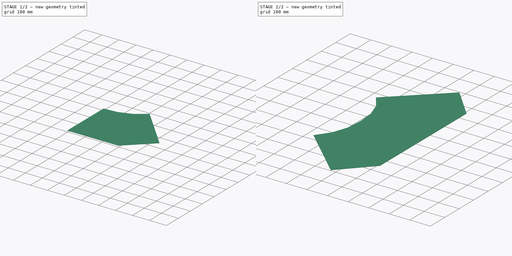
[diagram: build sequence overview — one tinted view per stage of 2, left to right]
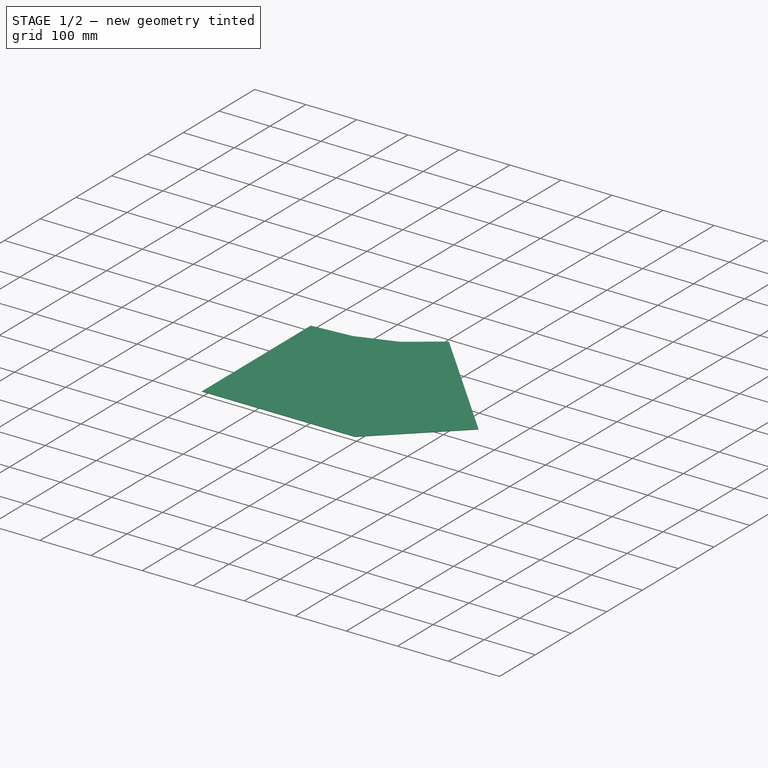
[diagram: stage 1 of 2 — iso view after this stage's code; geometry added in this stage tinted green]
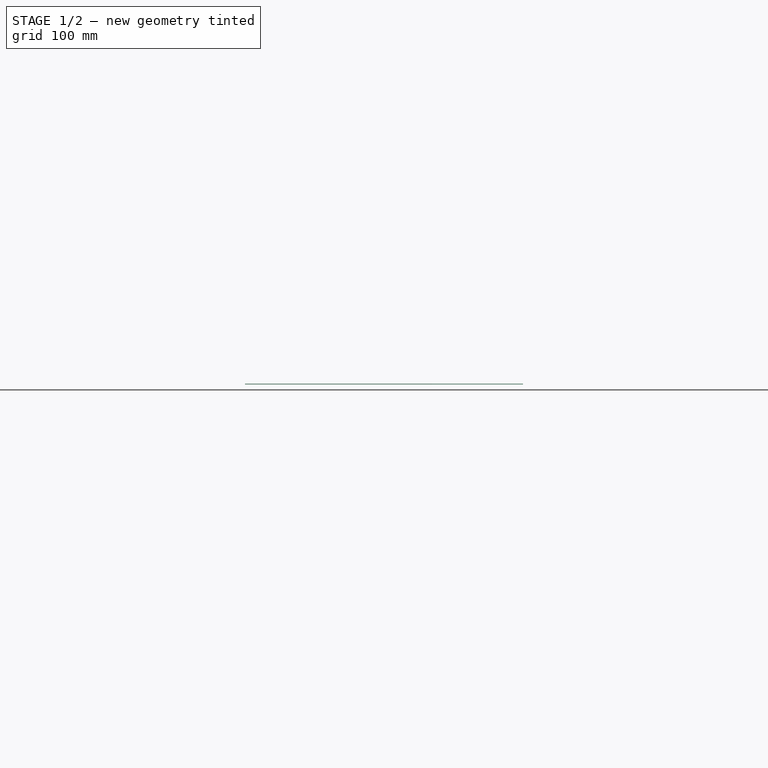
[diagram: stage 1 of 2 — front view after this stage's code; geometry added in this stage tinted green]
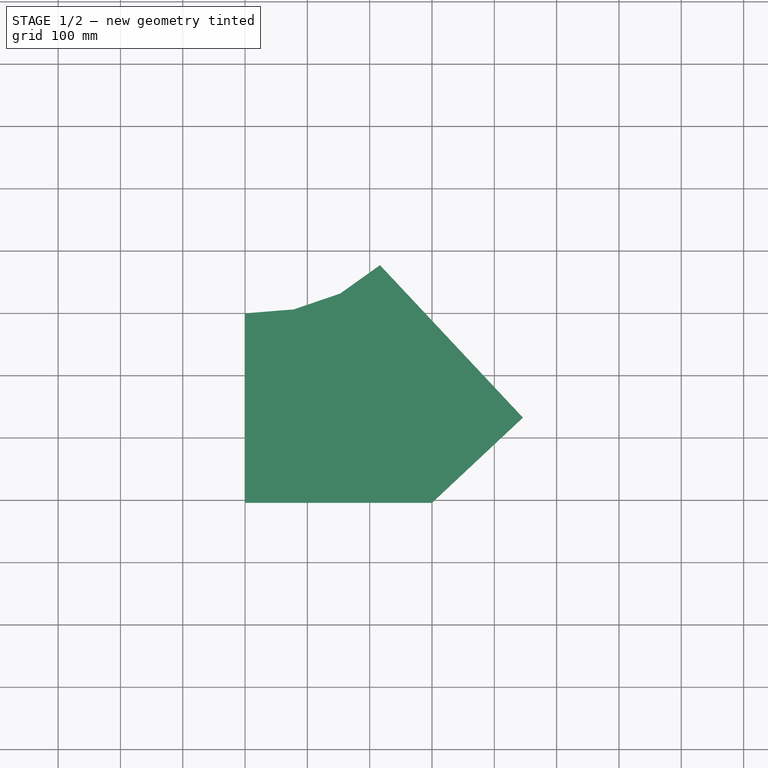
[diagram: stage 1 of 2 — top view after this stage's code; geometry added in this stage tinted green]
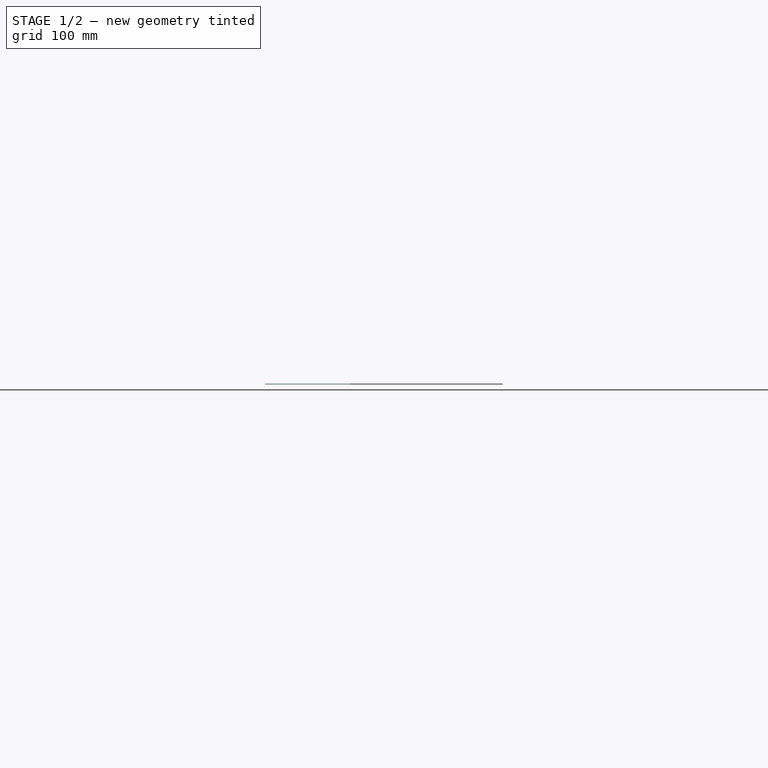
[diagram: stage 1 of 2 — right view after this stage's code; geometry added in this stage tinted green]
FCSTD DOCUMENT  (FreeCAD 0.19R17646 (Git))
Label: PLANIFICAÇÃO
License: All rights reserved
LicenseURL: http://en.wikipedia.org/wiki/All_rights_reserved
objects: Part::Feature×29, App::MeasureDistance×5, PartDesign::Body×3, Part::Plane×2, PartDesign::FeatureBase×2, Part::Circle×1, Part::RegularPolygon×1, Sketcher::SketchObject×1, PartDesign::Pad×1, Part::Compound×1, Part::Loft×1
note: 43 computed .brp shape members not serialized (recipe doc carries the construction recipe); baked Part::Feature solids carry a one-line shape summary decoded from their .brp

FEATURE [Part::Plane] Plane
  AttacherType = Attacher::AttachEngine3D
  Length = 300
  Placement = pos=(-300,-200,0) rot=(0,0,1;0rad)
  Width = 200
FEATURE [Part::Plane] Plane001
  AttacherType = Attacher::AttachEngine3D
  Length = 600
  Placement = pos=(-300,-200,0) rot=(0,0,1;0rad)
  Width = 400
FEATURE [Part::Circle] Circle
  Angle0 = 0
  Angle1 = 360
  AttacherType = Attacher::AttachEngine3D
  Placement = pos=(0,0,300) rot=(0,0,1;0rad)
  Radius = 150
FEATURE [Part::RegularPolygon] RegularPolygon  label="Regular polygon"
  AttacherType = Attacher::AttachEngine3D
  Circumradius = 150
  Placement = pos=(0,0,300) rot=(0,0,1;0rad)
  Polygon = 12
FEATURE [Part::Feature] Edge
  shape: bbox 2e-07 x 50 x 300 mm, 0 faces, 0 solids (baked)
FEATURE [Part::Feature] Edge001
  shape: bbox 300 x 50 x 300 mm, 0 faces, 0 solids (baked)
FEATURE [Part::Feature] Edge002
  shape: bbox 225 x 70.1 x 300 mm, 0 faces, 0 solids (baked)
FEATURE [Part::Feature] Edge003
  shape: bbox 170.1 x 125 x 300 mm, 0 faces, 0 solids (baked)
FEATURE [Part::Feature] Edge004
  shape: bbox 150 x 200 x 300 mm, 0 faces, 0 solids (baked)
FEATURE [Part::Feature] Edge005
  shape: bbox 150 x 2e-07 x 300 mm, 0 faces, 0 solids (baked)
FEATURE [App::MeasureDistance] Distance  label="Distance: 427,20 mm"
  Distance = 427.2
  P1 = (-1.563e-13,-150,300)
  P2 = (-300,-200,0)
FEATURE [App::MeasureDistance] Distance001  label="Distance: 381,50 mm"
  Distance = 381.495
  P1 = (-75,-129.904,300)
  P2 = (-300,-200,0)
FEATURE [App::MeasureDistance] Distance002  label="Distance: 366,82 mm"
  Distance = 366.821
  P1 = (-129.904,-75,300)
  P2 = (-300,-200,0)
FEATURE [App::MeasureDistance] Distance003  label="Distance: 390,51 mm"
  Distance = 390.512
  P1 = (-150,1.137e-13,300)
  P2 = (-300,-200,0)
FEATURE [App::MeasureDistance] Distance004  label="Distance: 335,41 mm"
  Distance = 335.41
  P1 = (-300,0,0)
  P2 = (-150,1.137e-13,300)
FEATURE [Sketcher::SketchObject] Sketch
  MapMode = 5
  Support = -> [XY_Plane]
  sketch-geometry (19):
    g0: LineSegment StartX=-300 StartY=-304.138 StartZ=0 EndX=0 EndY=-304.138 EndZ=0
    g1: LineSegment StartX=0 StartY=-304.138 StartZ=0 EndX=0 EndY=0 EndZ=0
    g2: LineSegment [constr] StartX=0 StartY=0 StartZ=0 EndX=-300 EndY=-304.138 EndZ=0
    g3: Circle [constr] CenterX=0 CenterY=0 CenterZ=0 NormalX=0 NormalY=0 NormalZ=1 AngleXU=0 Radius=78.54
    g4: Circle [constr] CenterX=-300 CenterY=-304.138 CenterZ=0 NormalX=0 NormalY=0 NormalZ=1 AngleXU=0 Radius=381.5
    g5: LineSegment [constr] StartX=-300 StartY=-304.138 StartZ=0 EndX=-78.2852 EndY=6.32116 EndZ=0
    g6: Circle [constr] CenterX=-78.2852 CenterY=6.32116 CenterZ=0 NormalX=0 NormalY=0 NormalZ=1 AngleXU=0 Radius=78.54
    g7: Circle [constr] CenterX=-300 CenterY=-304.138 CenterZ=0 NormalX=0 NormalY=0 NormalZ=1 AngleXU=0 Radius=366.82
    g8: LineSegment [constr] StartX=-300 StartY=-304.138 StartZ=0 EndX=-152.591 EndY=31.7603 EndZ=0
    g9: Circle [constr] CenterX=-152.591 CenterY=31.7603 CenterZ=0 NormalX=0 NormalY=0 NormalZ=1 AngleXU=0 Radius=78.54
    g10: Circle [constr] CenterX=-300 CenterY=-304.138 CenterZ=0 NormalX=0 NormalY=0 NormalZ=1 AngleXU=0 Radius=390.51
    g11: LineSegment [constr] StartX=-300 StartY=-304.138 StartZ=0 EndX=-216.545 EndY=77.3504 EndZ=0
    g12: Circle [constr] CenterX=-216.545 CenterY=77.3504 CenterZ=0 NormalX=0 NormalY=0 NormalZ=1 AngleXU=0 Radius=335.41
    g13: Circle [constr] CenterX=-300 CenterY=-304.138 CenterZ=0 NormalX=0 NormalY=0 NormalZ=1 AngleXU=0 Radius=200
    g14: LineSegment StartX=-216.545 StartY=77.3504 StartZ=0 EndX=-445.922 EndY=-167.365 EndZ=0
    g15: LineSegment StartX=-445.922 StartY=-167.365 StartZ=0 EndX=-300 EndY=-304.138 EndZ=0
    g16: LineSegment StartX=-216.545 StartY=77.3504 StartZ=0 EndX=-152.591 EndY=31.7603 EndZ=0
    g17: LineSegment StartX=-152.591 StartY=31.7603 StartZ=0 EndX=-78.2852 EndY=6.32116 EndZ=0
    g18: LineSegment StartX=-78.2852 StartY=6.32116 StartZ=0 EndX=0 EndY=0 EndZ=0
  constraints (44):
    c: Horizontal(g0)
    c: Coincident(g0,g1)
    c: Vertical(g1)
    c: Coincident(g1,g2)
    c: Coincident(g2,g0)
    c: DistanceX(g0,g0) = 300
    c: Distance(g2) = 427.2
    c: Coincident(g3,g1)
    c: Radius(g3) = 78.54  'step'
    c: Coincident(g4,g0)
    c: Radius(g4) = 381.5
    c: Coincident(g5,g0)
    c: PointOnObject(g5,g4)
    c: PointOnObject(g5,g3)
    c: Coincident(g6,g5)
    c: Equal(g3,g6)
    c: Coincident(g7,g0)
    c: Radius(g7) = 366.82
    c: Coincident(g8,g0)
    c: PointOnObject(g8,g7)
    c: PointOnObject(g8,g6)
    c: Coincident(g9,g8)
    c: Equal(g3,g9)
    c: Coincident(g10,g0)
    c: Radius(g10) = 390.51
    c: Coincident(g11,g0)
    c: PointOnObject(g11,g10)
    c: PointOnObject(g11,g9)
    c: Coincident(g12,g11)
    c: Radius(g12) = 335.41
    c: Coincident(g13,g0)
    c: Radius(g13) = 200
    c: Coincident(g14,g12)
    c: Coincident(g14,g15)
    c: Coincident(g15,g0)
    c: PointOnObject(g14,g12)
    c: PointOnObject(g14,g13)
    c: Coincident(g14,g16)
    c: Coincident(g16,g8)
    c: Coincident(g16,g17)
    c: Coincident(g17,g5)
    c: Coincident(g17,g18)
    c: Coincident(g18,g1)
    c: Coincident(g1,g-1)
FEATURE [PartDesign::Pad] Pad
  Length = 1
  Length2 = 100
  Midplane = true
  Profile = -> Sketch
  Type = 0
FEATURE [PartDesign::Body] Body
  Group = -> [Sketch,Pad]
  Origin = -> Origin
  Tip = -> Pad
FEATURE [PartDesign::FeatureBase] Clone
  BaseFeature = -> Pad
  Placement = pos=(0,0,0) rot=(0,1,0;3.14159rad)
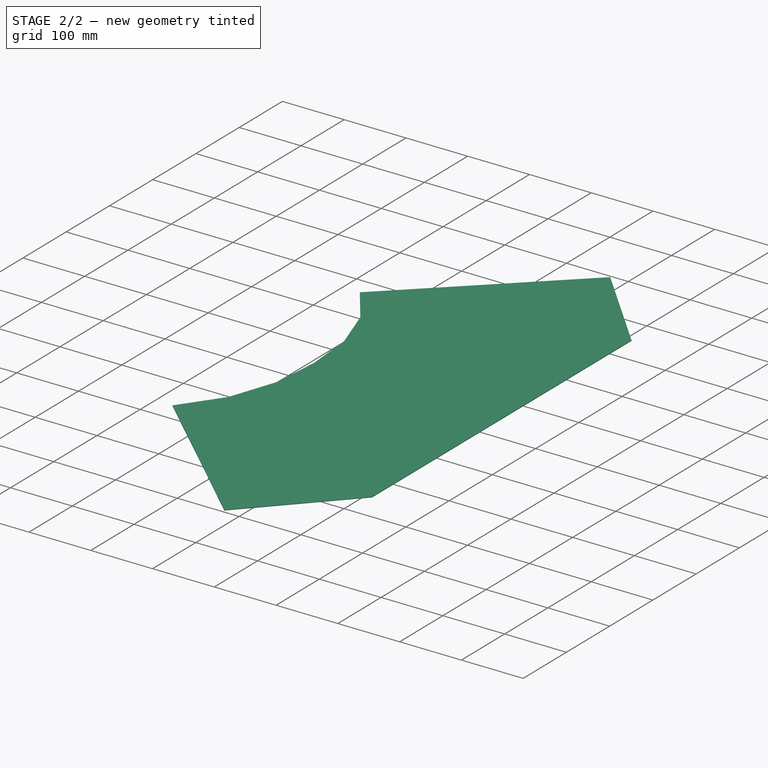
[diagram: stage 2 of 2 — iso view after this stage's code; geometry added in this stage tinted green]
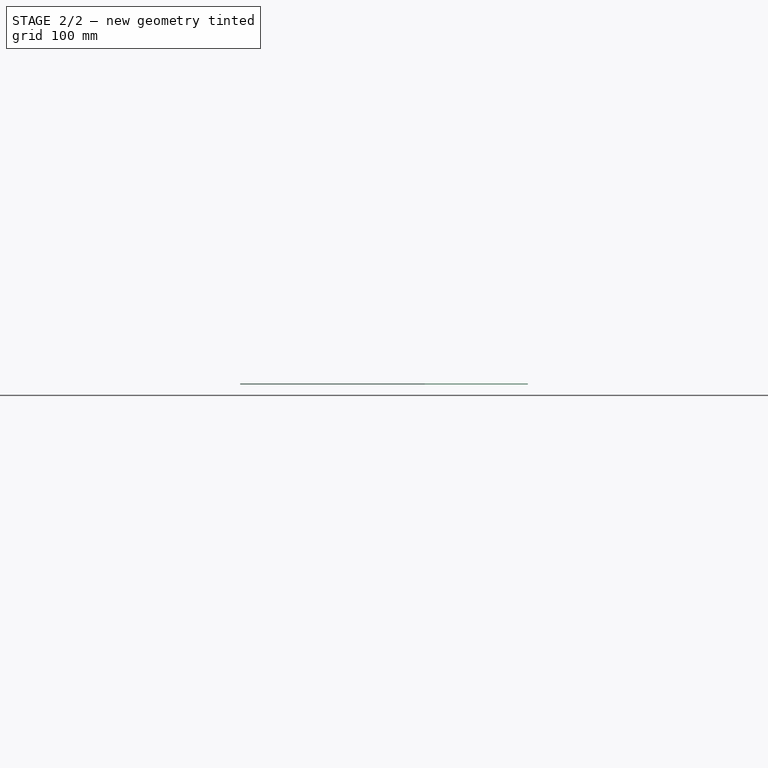
[diagram: stage 2 of 2 — front view after this stage's code; geometry added in this stage tinted green]
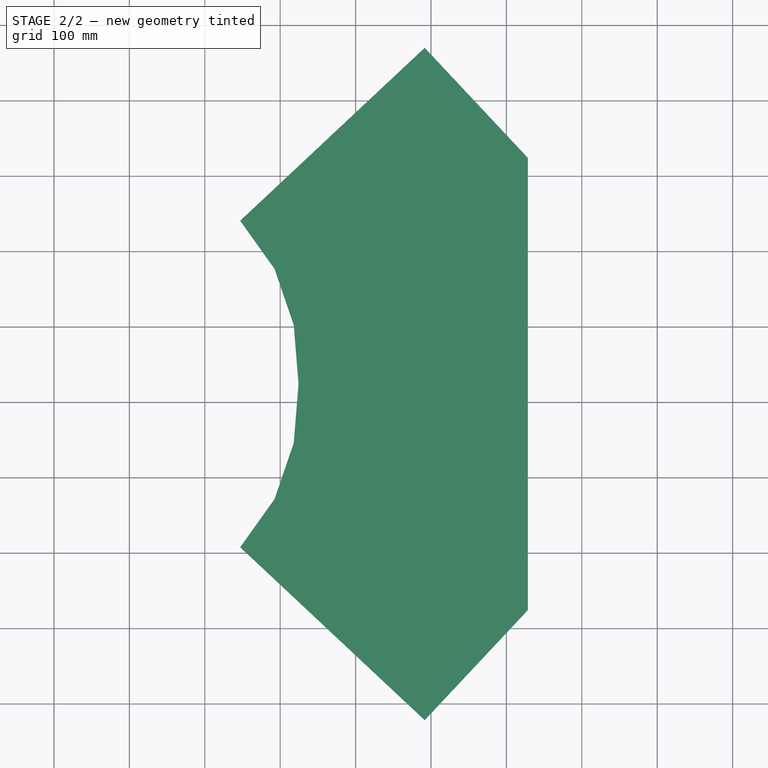
[diagram: stage 2 of 2 — top view after this stage's code; geometry added in this stage tinted green]
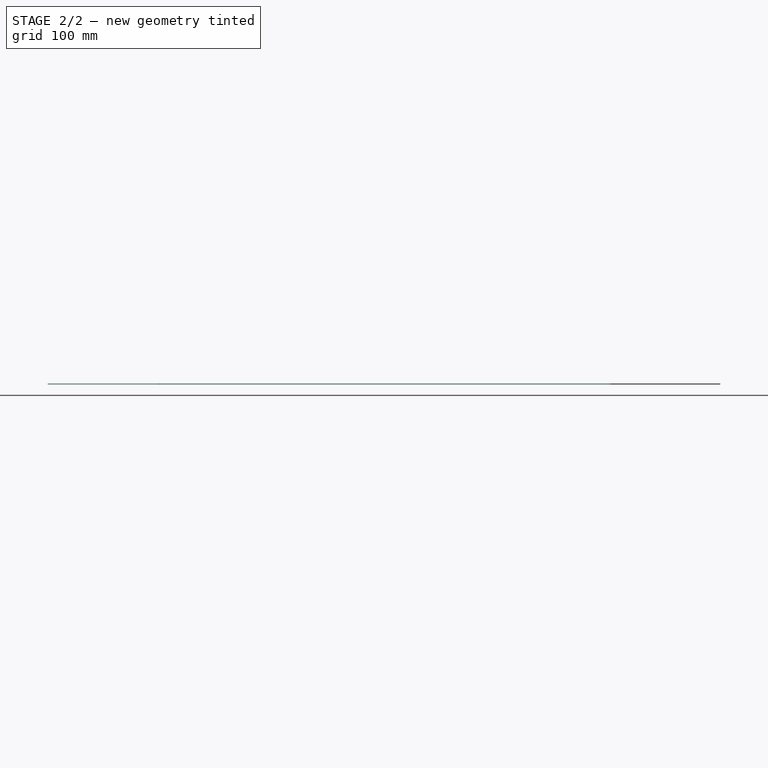
[diagram: stage 2 of 2 — right view after this stage's code; geometry added in this stage tinted green]
FEATURE [PartDesign::Body] Body001
  BaseFeature = -> Pad
  Group = -> [Clone]
  Origin = -> Origin001
  Tip = -> Clone
FEATURE [Part::Compound] Compound
  Links = -> [Pad,Clone]
  Placement = pos=(0,0,-400) rot=(0,0,1;0rad)
FEATURE [PartDesign::FeatureBase] Clone001
  BaseFeature = -> Compound
  Placement = pos=(324.264,324.264,-400) rot=(0,0,1;1.5708rad)
FEATURE [PartDesign::Body] Body002
  BaseFeature = -> Compound
  Group = -> [Clone001]
  Origin = -> Origin002
  Tip = -> Clone001
FEATURE [Part::Loft] Loft
  Closed = false
  MaxDegree = 5
  Ruled = true
  Sections = -> [Circle,Plane001]
  Solid = false
FEATURE [Part::Feature] Edge006
  shape: bbox 83.46 x 381.5 x 2e-07 mm, 0 faces, 0 solids (baked)
FEATURE [Part::Feature] Edge007
  shape: bbox 147.4 x 335.9 x 2e-07 mm, 0 faces, 0 solids (baked)
FEATURE [Part::Feature] Edge008
  shape: bbox 221.7 x 310.5 x 2e-07 mm, 0 faces, 0 solids (baked)
FEATURE [Part::Feature] Edge009
  shape: bbox 300 x 304.1 x 2e-07 mm, 0 faces, 0 solids (baked)
FEATURE [Part::Feature] Edge010
  shape: bbox 300 x 304.1 x 2e-07 mm, 0 faces, 0 solids (baked)
FEATURE [Part::Feature] Edge011
  shape: bbox 221.7 x 310.5 x 2e-07 mm, 0 faces, 0 solids (baked)
FEATURE [Part::Feature] Edge012
  shape: bbox 147.4 x 335.9 x 2e-07 mm, 0 faces, 0 solids (baked)
FEATURE [Part::Feature] Edge013
  shape: bbox 83.46 x 381.5 x 2e-07 mm, 0 faces, 0 solids (baked)
FEATURE [Part::Feature] Edge014
  shape: bbox 381.5 x 83.46 x 2e-07 mm, 0 faces, 0 solids (baked)
FEATURE [Part::Feature] Edge015
  shape: bbox 335.9 x 147.4 x 2e-07 mm, 0 faces, 0 solids (baked)
FEATURE [Part::Feature] Edge016
  shape: bbox 310.5 x 221.7 x 2e-07 mm, 0 faces, 0 solids (baked)
FEATURE [Part::Feature] Edge017
  shape: bbox 304.1 x 300 x 2e-07 mm, 0 faces, 0 solids (baked)
FEATURE [Part::Feature] Edge018
  shape: bbox 304.1 x 300 x 2e-07 mm, 0 faces, 0 solids (baked)
FEATURE [Part::Feature] Edge019
  shape: bbox 310.5 x 221.7 x 2e-07 mm, 0 faces, 0 solids (baked)
FEATURE [Part::Feature] Edge020
  shape: bbox 335.9 x 147.4 x 2e-07 mm, 0 faces, 0 solids (baked)
FEATURE [Part::Feature] Edge021
  shape: bbox 381.5 x 83.46 x 2e-07 mm, 0 faces, 0 solids (baked)
FEATURE [Part::Feature] Edge022
  shape: bbox 300 x 50 x 300 mm, 0 faces, 0 solids (baked)
FEATURE [Part::Feature] Edge023
  shape: bbox 225 x 70.1 x 300 mm, 0 faces, 0 solids (baked)
FEATURE [Part::Feature] Edge024
  shape: bbox 170.1 x 125 x 300 mm, 0 faces, 0 solids (baked)
FEATURE [Part::Feature] Edge025
  shape: bbox 150 x 200 x 300 mm, 0 faces, 0 solids (baked)
FEATURE [Part::Feature] Edge026
  shape: bbox 150 x 200 x 300 mm, 0 faces, 0 solids (baked)
FEATURE [Part::Feature] Edge027
  shape: bbox 170.1 x 125 x 300 mm, 0 faces, 0 solids (baked)
FEATURE [Part::Feature] Edge028
  shape: bbox 225 x 70.1 x 300 mm, 0 faces, 0 solids (baked)
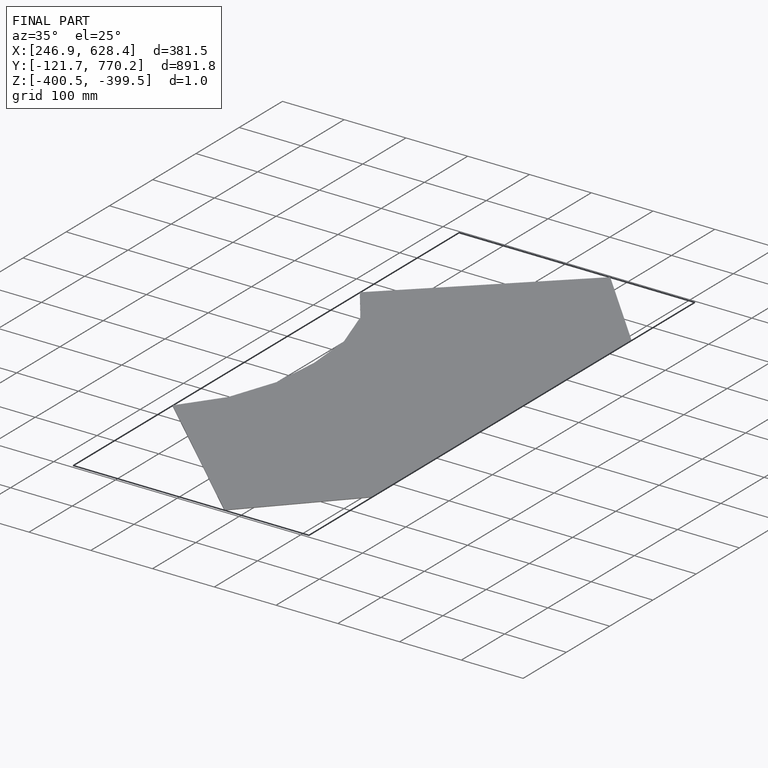
[diagram: finished part — iso view with bounding-box wireframe]
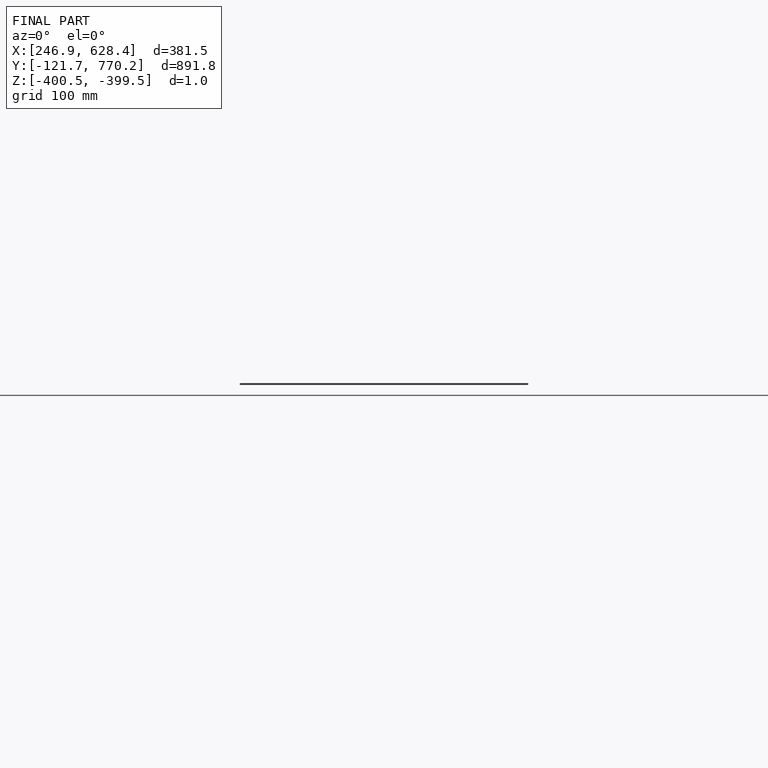
[diagram: finished part — front view with bounding-box wireframe]
